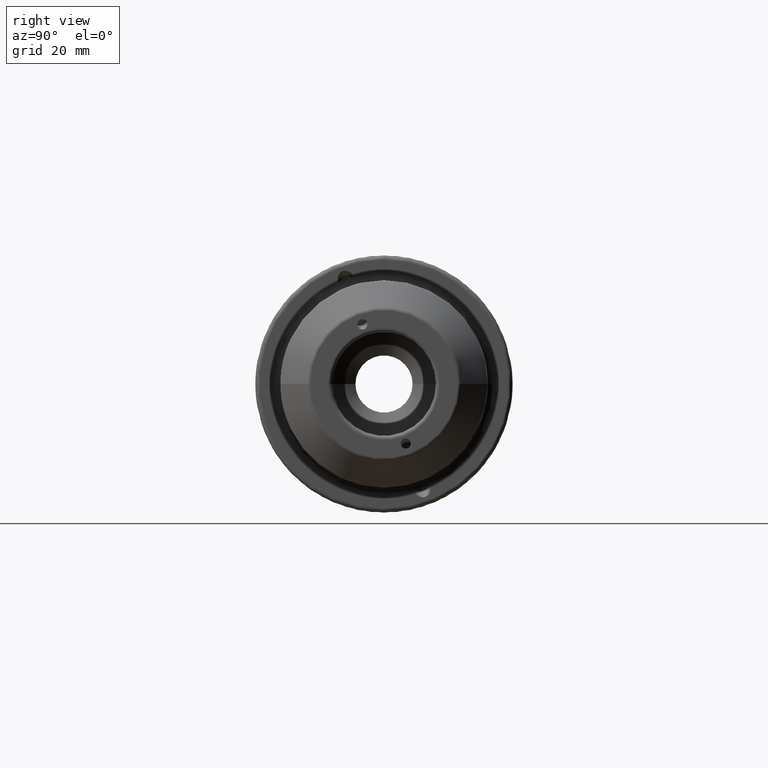
[diagram: clean part render]
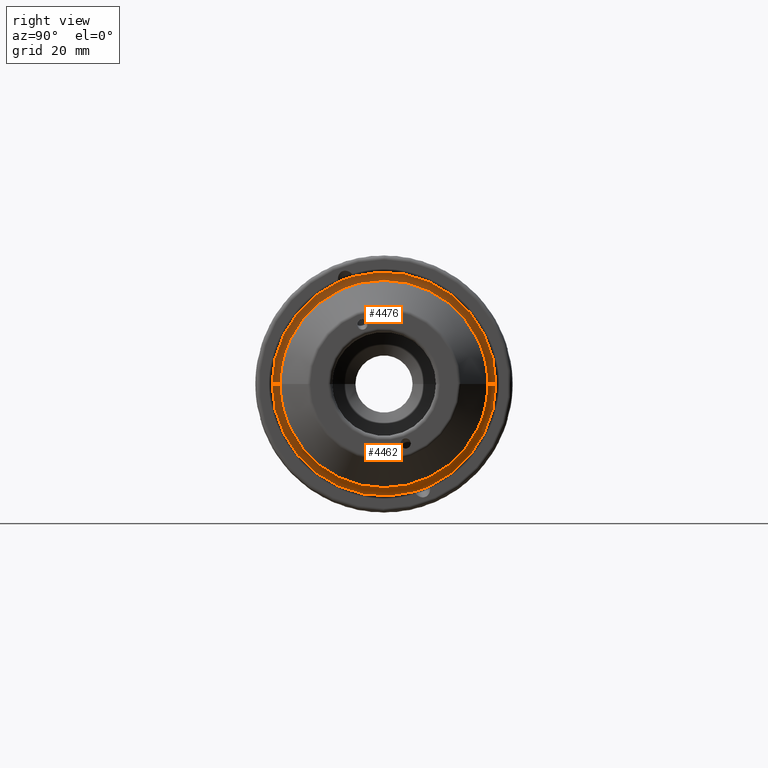
[diagram: same view with one multi-face feature highlighted, each face labeled with its STEP entity id]
A machine part, right view. The highlighted faces form ONE feature: a constant-radius fillet chain: 2 tangent blend faces with common blend radius 2 mm. The faces share edges in the B-rep.
Their STEP definitions:
[1] entity #4462 (Torus):
#619=CARTESIAN_POINT('',(2.7E1,0.E0,0.E0));
#620=DIRECTION('',(1.E0,0.E0,0.E0));
#621=DIRECTION('',(0.E0,2.731562532214E-1,-9.619696779660E-1));
#622=AXIS2_PLACEMENT_3D('',#619,#620,#621);
#652=CARTESIAN_POINT('',(2.7E1,0.E0,0.E0));
#653=DIRECTION('',(-1.E0,0.E0,0.E0));
#654=DIRECTION('',(0.E0,2.731562532214E-1,-9.619696779660E-1));
#655=AXIS2_PLACEMENT_3D('',#652,#653,#654);
#671=CARTESIAN_POINT('',(2.7E1,0.E0,0.E0));
#672=DIRECTION('',(-1.E0,0.E0,0.E0));
#673=DIRECTION('',(0.E0,1.E0,0.E0));
#674=AXIS2_PLACEMENT_3D('',#671,#672,#673);
#2011=CARTESIAN_POINT('',(2.9E1,-2.74E1,0.E0));
#2012=DIRECTION('',(0.E0,0.E0,1.E0));
#2013=DIRECTION('',(0.E0,1.E0,0.E0));
#2014=AXIS2_PLACEMENT_3D('',#2011,#2012,#2013);
#2016=CARTESIAN_POINT('',(2.9E1,0.E0,0.E0));
#2017=DIRECTION('',(1.E0,0.E0,0.E0));
#2018=DIRECTION('',(0.E0,-1.E0,0.E0));
#2019=AXIS2_PLACEMENT_3D('',#2016,#2017,#2018);
#2021=CARTESIAN_POINT('',(2.9E1,2.74E1,0.E0));
#2022=DIRECTION('',(0.E0,0.E0,-1.E0));
#2023=DIRECTION('',(0.E0,-1.E0,0.E0));
#2024=AXIS2_PLACEMENT_3D('',#2021,#2022,#2023);
#2506=CARTESIAN_POINT('',(2.9E1,-2.54E1,0.E0));
#2507=CARTESIAN_POINT('',(2.9E1,2.54E1,0.E0));
#2508=VERTEX_POINT('',#2506);
#2509=VERTEX_POINT('',#2507);
#2516=CARTESIAN_POINT('',(2.7E1,-2.74E1,0.E0));
#2518=VERTEX_POINT('',#2516);
#2521=CARTESIAN_POINT('',(2.7E1,2.74E1,0.E0));
#2523=VERTEX_POINT('',#2521);
#2524=CARTESIAN_POINT('',(2.7E1,1.120913066420E1,-2.500230768855E1));
#2525=VERTEX_POINT('',#2524);
#2526=CARTESIAN_POINT('',(2.7E1,7.484481338267E0,-2.635796917627E1));
#2527=VERTEX_POINT('',#2526);
#4447=CARTESIAN_POINT('',(2.9E1,0.E0,0.E0));
#4448=DIRECTION('',(-1.E0,0.E0,0.E0));
#4449=DIRECTION('',(0.E0,-1.E0,0.E0));
#4450=AXIS2_PLACEMENT_3D('',#4447,#4448,#4449);
#4451=TOROIDAL_SURFACE('',#4450,2.74E1,2.E0);
#4452=ORIENTED_EDGE('',*,*,#3298,.T.);
#4453=ORIENTED_EDGE('',*,*,#3245,.F.);
#4454=ORIENTED_EDGE('',*,*,#3293,.T.);
#4456=ORIENTED_EDGE('',*,*,#4455,.F.);
#4457=ORIENTED_EDGE('',*,*,#4231,.T.);
#4459=ORIENTED_EDGE('',*,*,#4458,.T.);
#4460=EDGE_LOOP('',(#4452,#4453,#4454,#4456,#4457,#4459));
#4461=FACE_OUTER_BOUND('',#4460,.F.);
#4462=ADVANCED_FACE('',(#4461),#4451,.F.);
#623=CIRCLE('',#622,2.74E1);
#656=CIRCLE('',#655,2.74E1);
#675=CIRCLE('',#674,2.74E1);
#2015=CIRCLE('',#2014,2.E0);
#2020=CIRCLE('',#2019,2.54E1);
#2025=CIRCLE('',#2024,2.E0);
#3245=EDGE_CURVE('',#2527,#2525,#623,.T.);
#3293=EDGE_CURVE('',#2527,#2518,#656,.T.);
#3298=EDGE_CURVE('',#2523,#2525,#675,.T.);
#4231=EDGE_CURVE('',#2508,#2509,#2020,.T.);
#4455=EDGE_CURVE('',#2508,#2518,#2015,.T.);
#4458=EDGE_CURVE('',#2509,#2523,#2025,.T.);
[2] entity #4476 (Torus):
#624=CARTESIAN_POINT('',(2.7E1,0.E0,0.E0));
#625=DIRECTION('',(-1.E0,0.E0,0.E0));
#626=DIRECTION('',(0.E0,-4.090923600072E-1,9.124929813339E-1));
#627=AXIS2_PLACEMENT_3D('',#624,#625,#626);
#647=CARTESIAN_POINT('',(2.7E1,0.E0,0.E0));
#648=DIRECTION('',(-1.E0,0.E0,0.E0));
#649=DIRECTION('',(0.E0,-1.E0,0.E0));
#650=AXIS2_PLACEMENT_3D('',#647,#648,#649);
#676=CARTESIAN_POINT('',(2.7E1,0.E0,0.E0));
#677=DIRECTION('',(-1.E0,0.E0,0.E0));
#678=DIRECTION('',(0.E0,-2.731562532214E-1,9.619696779660E-1));
#679=AXIS2_PLACEMENT_3D('',#676,#677,#678);
#2011=CARTESIAN_POINT('',(2.9E1,-2.74E1,0.E0));
#2012=DIRECTION('',(0.E0,0.E0,1.E0));
#2013=DIRECTION('',(0.E0,1.E0,0.E0));
#2014=AXIS2_PLACEMENT_3D('',#2011,#2012,#2013);
#2021=CARTESIAN_POINT('',(2.9E1,2.74E1,0.E0));
#2022=DIRECTION('',(0.E0,0.E0,-1.E0));
#2023=DIRECTION('',(0.E0,-1.E0,0.E0));
#2024=AXIS2_PLACEMENT_3D('',#2021,#2022,#2023);
#2026=CARTESIAN_POINT('',(2.9E1,0.E0,0.E0));
#2027=DIRECTION('',(-1.E0,0.E0,0.E0));
#2028=DIRECTION('',(0.E0,-1.E0,0.E0));
#2029=AXIS2_PLACEMENT_3D('',#2026,#2027,#2028);
#2506=CARTESIAN_POINT('',(2.9E1,-2.54E1,0.E0));
#2507=CARTESIAN_POINT('',(2.9E1,2.54E1,0.E0));
#2508=VERTEX_POINT('',#2506);
#2509=VERTEX_POINT('',#2507);
#2516=CARTESIAN_POINT('',(2.7E1,-2.74E1,0.E0));
#2517=CARTESIAN_POINT('',(2.7E1,-1.120913066420E1,2.500230768855E1));
#2518=VERTEX_POINT('',#2516);
#2519=VERTEX_POINT('',#2517);
#2520=CARTESIAN_POINT('',(2.7E1,-7.484481338267E0,2.635796917627E1));
#2521=CARTESIAN_POINT('',(2.7E1,2.74E1,0.E0));
#2522=VERTEX_POINT('',#2520);
#2523=VERTEX_POINT('',#2521);
#4463=CARTESIAN_POINT('',(2.9E1,0.E0,0.E0));
#4464=DIRECTION('',(-1.E0,0.E0,0.E0));
#4465=DIRECTION('',(0.E0,-1.E0,0.E0));
#4466=AXIS2_PLACEMENT_3D('',#4463,#4464,#4465);
#4467=TOROIDAL_SURFACE('',#4466,2.74E1,2.E0);
#4468=ORIENTED_EDGE('',*,*,#3291,.T.);
#4469=ORIENTED_EDGE('',*,*,#3258,.T.);
#4470=ORIENTED_EDGE('',*,*,#3300,.T.);
#4471=ORIENTED_EDGE('',*,*,#4458,.F.);
#4472=ORIENTED_EDGE('',*,*,#4075,.F.);
#4473=ORIENTED_EDGE('',*,*,#4455,.T.);
#4474=EDGE_LOOP('',(#4468,#4469,#4470,#4471,#4472,#4473));
#4475=FACE_OUTER_BOUND('',#4474,.F.);
#4476=ADVANCED_FACE('',(#4475),#4467,.F.);
#628=CIRCLE('',#627,2.74E1);
#651=CIRCLE('',#650,2.74E1);
#680=CIRCLE('',#679,2.74E1);
#2015=CIRCLE('',#2014,2.E0);
#2025=CIRCLE('',#2024,2.E0);
#2030=CIRCLE('',#2029,2.54E1);
#3258=EDGE_CURVE('',#2519,#2522,#628,.T.);
#3291=EDGE_CURVE('',#2518,#2519,#651,.T.);
#3300=EDGE_CURVE('',#2522,#2523,#680,.T.);
#4075=EDGE_CURVE('',#2508,#2509,#2030,.T.);
#4455=EDGE_CURVE('',#2508,#2518,#2015,.T.);
#4458=EDGE_CURVE('',#2509,#2523,#2025,.T.);